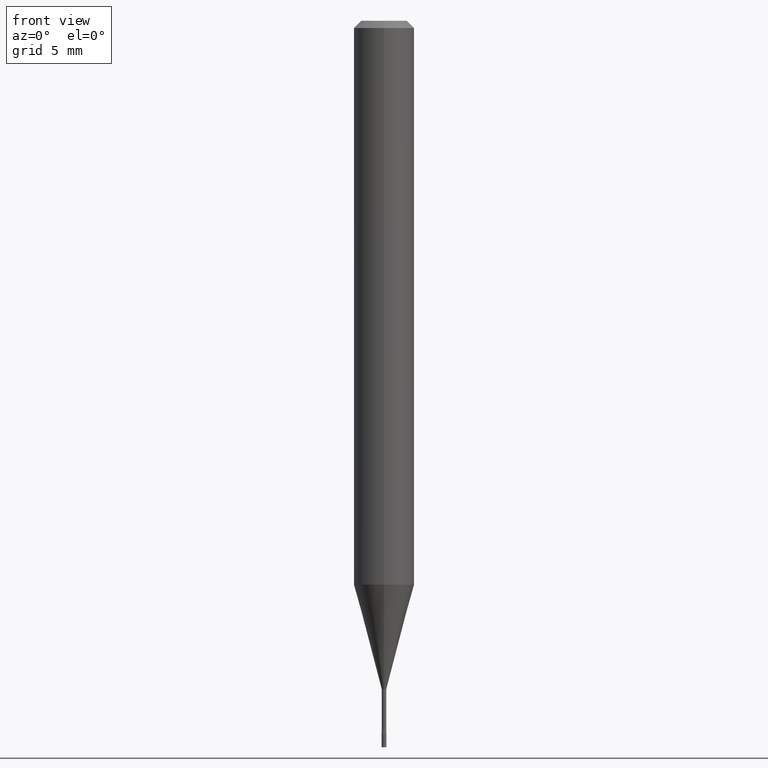
[diagram: clean part render]
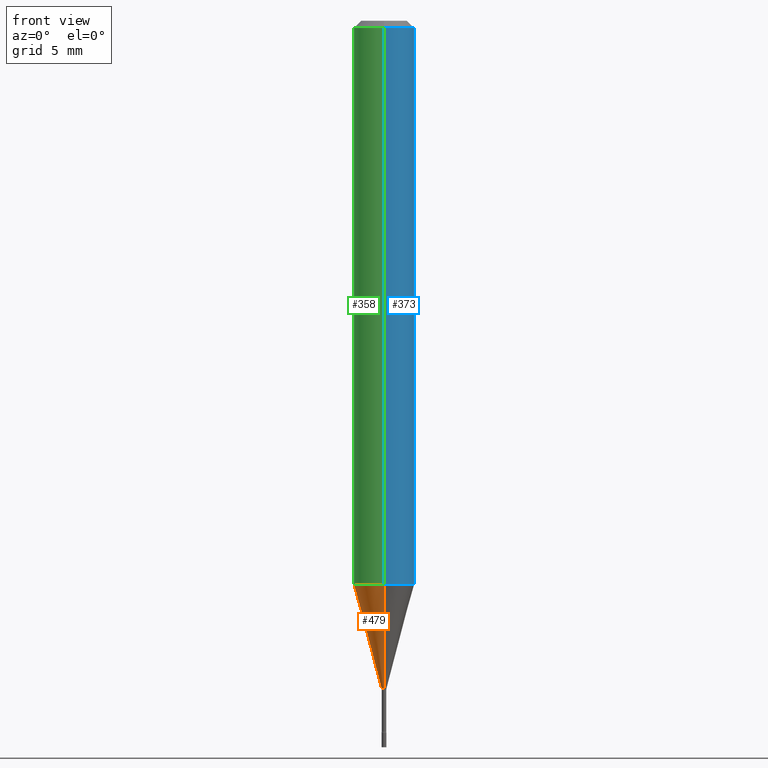
[diagram: same view with three faces highlighted in distinct colors, each labeled with its STEP entity id]
A machine part, front view with three faces highlighted in distinct colors.
Their STEP definitions:

[orange] entity #479 — the highlighted conical surface has half-angle 15 deg.
#1 = VECTOR ( 'NONE', #65, 39.37007874015748143 ) ;
#8 = CARTESIAN_POINT ( 'NONE',  ( -3.638900483453789669E-17, -0.005211112605668734299, -1.378092501787273605 ) ) ;
#22 = DIRECTION ( 'NONE',  ( -6.982962677686265922E-15, -1.000000000000000000, 4.370956789862821150E-15 ) ) ;
#43 = AXIS2_PLACEMENT_3D ( 'NONE', #74, #219, #22 ) ;
#47 = DIRECTION ( 'NONE',  ( -1.807323732225325801E-15, -0.2588190451025175753, 0.9659258262890690894 ) ) ;
#54 = DIRECTION ( 'NONE',  ( -6.982962677686266711E-15, -1.000000000000000000, 0.000000000000000000 ) ) ;
#55 = EDGE_CURVE ( 'NONE', #324, #137, #284, .T. ) ;
#56 = LINE ( 'NONE', #8, #127 ) ;
#65 = DIRECTION ( 'NONE',  ( 1.839019923739595977E-15, 0.2588190451025243477, 0.9659258262890673130 ) ) ;
#73 = EDGE_LOOP ( 'NONE', ( #450, #268, #245, #310 ) ) ;
#74 = CARTESIAN_POINT ( 'NONE',  ( 2.844915954601450546E-29, -4.068399895600381940E-15, -1.164287463322519312 ) ) ;
#109 = DIRECTION ( 'NONE',  ( -6.982962677686266711E-15, -1.000000000000000000, 0.000000000000000000 ) ) ;
#127 = VECTOR ( 'NONE', #47, 39.37007874015748854 ) ;
#137 = VERTEX_POINT ( 'NONE', #257 ) ;
#144 = CIRCLE ( 'NONE', #292, 0.005211112605663917839 ) ;
#148 = VERTEX_POINT ( 'NONE', #234 ) ;
#159 = DIRECTION ( 'NONE',  ( -2.443482425279177286E-29, 3.494325949358259350E-15, 1.000000000000000000 ) ) ;
#176 = EDGE_CURVE ( 'NONE', #202, #148, #144, .T. ) ;
#180 = CARTESIAN_POINT ( 'NONE',  ( 3.702718207185751166E-17, 0.005211112605659102247, -1.378092501787273605 ) ) ;
#185 = LINE ( 'NONE', #180, #1 ) ;
#202 = VERTEX_POINT ( 'NONE', #391 ) ;
#219 = DIRECTION ( 'NONE',  ( -2.443482425279177286E-29, 3.494325949358259350E-15, 1.000000000000000000 ) ) ;
#234 = CARTESIAN_POINT ( 'NONE',  ( -3.638900483453789669E-17, -0.005211112605668734299, -1.378092501787273605 ) ) ;
#240 = EDGE_CURVE ( 'NONE', #148, #137, #56, .T. ) ;
#245 = ORIENTED_EDGE ( 'NONE', *, *, #240, .T. ) ;
#257 = CARTESIAN_POINT ( 'NONE',  ( -4.364351673553632704E-16, -0.06250000000000409395, -1.164287463322519089 ) ) ;
#258 = EDGE_CURVE ( 'NONE', #202, #324, #185, .T. ) ;
#268 = ORIENTED_EDGE ( 'NONE', *, *, #176, .T. ) ;
#269 = CARTESIAN_POINT ( 'NONE',  ( 4.440892098500909166E-16, 0.06249999999999592687, -1.164287463322519756 ) ) ;
#284 = CIRCLE ( 'NONE', #43, 0.06250000000000000000 ) ;
#292 = AXIS2_PLACEMENT_3D ( 'NONE', #379, #459, #54 ) ;
#310 = ORIENTED_EDGE ( 'NONE', *, *, #55, .F. ) ;
#324 = VERTEX_POINT ( 'NONE', #269 ) ;
#379 = CARTESIAN_POINT ( 'NONE',  ( 3.367344808526216247E-29, -4.815504389611313492E-15, -1.378092501787273605 ) ) ;
#391 = CARTESIAN_POINT ( 'NONE',  ( 2.405581959609744668E-16, 0.005211112605659102247, -1.378092501787273605 ) ) ;
#419 = CONICAL_SURFACE ( 'NONE', #483, 0.005211112605663917839, 0.2617993877991496299 ) ;
#450 = ORIENTED_EDGE ( 'NONE', *, *, #258, .F. ) ;
#459 = DIRECTION ( 'NONE',  ( -2.443482425279177286E-29, 3.494325949358259350E-15, 1.000000000000000000 ) ) ;
#478 = CARTESIAN_POINT ( 'NONE',  ( 3.367344808526216247E-29, -4.815504389611313492E-15, -1.378092501787273605 ) ) ;
#479 = ADVANCED_FACE ( 'NONE', ( #517 ), #419, .T. ) ;
#483 = AXIS2_PLACEMENT_3D ( 'NONE', #478, #159, #109 ) ;
#517 = FACE_OUTER_BOUND ( 'NONE', #73, .T. ) ;

[blue] entity #373 — the highlighted cylindrical surface (edge-blend (fillet) strip) has radius 1.5875 mm, axis along (-0, 0, 1).
#7 = ORIENTED_EDGE ( 'NONE', *, *, #357, .T. ) ;
#15 = DIRECTION ( 'NONE',  ( -6.982962677686265922E-15, -1.000000000000000000, 3.494325949358259350E-15 ) ) ;
#21 = CARTESIAN_POINT ( 'NONE',  ( 2.844915954601450546E-29, -4.068399895600381940E-15, -1.164287463322519312 ) ) ;
#31 = VERTEX_POINT ( 'NONE', #162 ) ;
#37 = ORIENTED_EDGE ( 'NONE', *, *, #281, .F. ) ;
#99 = VECTOR ( 'NONE', #314, 39.37007874015748143 ) ;
#102 = CYLINDRICAL_SURFACE ( 'NONE', #325, 0.06250000000000000000 ) ;
#117 = VECTOR ( 'NONE', #462, 39.37007874015748143 ) ;
#118 = CARTESIAN_POINT ( 'NONE',  ( 4.440892098500912124E-16, 0.06249999999999995143, -0.01500000000000024751 ) ) ;
#137 = VERTEX_POINT ( 'NONE', #257 ) ;
#143 = DIRECTION ( 'NONE',  ( -6.982962677686265922E-15, -1.000000000000000000, 4.370956789862821150E-15 ) ) ;
#157 = LINE ( 'NONE', #360, #99 ) ;
#162 = CARTESIAN_POINT ( 'NONE',  ( -4.364351673553912750E-16, -0.06250000000000005551, -0.01499999999999981209 ) ) ;
#193 = AXIS2_PLACEMENT_3D ( 'NONE', #471, #263, #463 ) ;
#250 = ORIENTED_EDGE ( 'NONE', *, *, #322, .T. ) ;
#257 = CARTESIAN_POINT ( 'NONE',  ( -4.364351673553632704E-16, -0.06250000000000409395, -1.164287463322519089 ) ) ;
#260 = DIRECTION ( 'NONE',  ( -2.443482425279177286E-29, 3.494325949358259350E-15, 1.000000000000000000 ) ) ;
#263 = DIRECTION ( 'NONE',  ( -2.443482425279177286E-29, 3.494325949358259350E-15, 1.000000000000000000 ) ) ;
#269 = CARTESIAN_POINT ( 'NONE',  ( 4.440892098500909166E-16, 0.06249999999999592687, -1.164287463322519756 ) ) ;
#281 = EDGE_CURVE ( 'NONE', #31, #399, #413, .T. ) ;
#296 = ORIENTED_EDGE ( 'NONE', *, *, #464, .F. ) ;
#299 = CIRCLE ( 'NONE', #375, 0.06250000000000000000 ) ;
#314 = DIRECTION ( 'NONE',  ( -2.443482425279177286E-29, 3.494325949358259350E-15, 1.000000000000000000 ) ) ;
#322 = EDGE_CURVE ( 'NONE', #137, #324, #299, .T. ) ;
#324 = VERTEX_POINT ( 'NONE', #269 ) ;
#325 = AXIS2_PLACEMENT_3D ( 'NONE', #383, #260, #15 ) ;
#357 = EDGE_CURVE ( 'NONE', #324, #399, #466, .T. ) ;
#360 = CARTESIAN_POINT ( 'NONE',  ( -4.364351673553916201E-16, -0.06250000000000000000, 2.183953718348912094E-16 ) ) ;
#373 = ADVANCED_FACE ( 'NONE', ( #424 ), #102, .T. ) ;
#375 = AXIS2_PLACEMENT_3D ( 'NONE', #21, #396, #143 ) ;
#383 = CARTESIAN_POINT ( 'NONE',  ( 0.000000000000000000, 0.000000000000000000, 0.000000000000000000 ) ) ;
#396 = DIRECTION ( 'NONE',  ( -2.443482425279177286E-29, 3.494325949358259350E-15, 1.000000000000000000 ) ) ;
#399 = VERTEX_POINT ( 'NONE', #118 ) ;
#413 = CIRCLE ( 'NONE', #193, 0.06250000000000000000 ) ;
#422 = EDGE_LOOP ( 'NONE', ( #250, #7, #37, #296 ) ) ;
#424 = FACE_OUTER_BOUND ( 'NONE', #422, .T. ) ;
#462 = DIRECTION ( 'NONE',  ( -2.443482425279177286E-29, 3.494325949358259350E-15, 1.000000000000000000 ) ) ;
#463 = DIRECTION ( 'NONE',  ( -6.982962677686265922E-15, -1.000000000000000000, 3.483106191921935554E-15 ) ) ;
#464 = EDGE_CURVE ( 'NONE', #137, #31, #157, .T. ) ;
#466 = LINE ( 'NONE', #509, #117 ) ;
#471 = CARTESIAN_POINT ( 'NONE',  ( 3.665223637918772884E-31, -5.241488924037400118E-17, -0.01500000000000003067 ) ) ;
#509 = CARTESIAN_POINT ( 'NONE',  ( 4.440892098500625669E-16, 0.06250000000000000000, -2.183953718348912094E-16 ) ) ;

[green] entity #358 — the highlighted cylindrical surface (edge-blend (fillet) strip) has radius 1.5875 mm, axis along (-0, 0, 1).
#22 = DIRECTION ( 'NONE',  ( -6.982962677686265922E-15, -1.000000000000000000, 4.370956789862821150E-15 ) ) ;
#28 = CARTESIAN_POINT ( 'NONE',  ( 0.000000000000000000, 0.000000000000000000, 0.000000000000000000 ) ) ;
#31 = VERTEX_POINT ( 'NONE', #162 ) ;
#43 = AXIS2_PLACEMENT_3D ( 'NONE', #74, #219, #22 ) ;
#55 = EDGE_CURVE ( 'NONE', #324, #137, #284, .T. ) ;
#58 = ORIENTED_EDGE ( 'NONE', *, *, #357, .F. ) ;
#63 = DIRECTION ( 'NONE',  ( -2.443482425279177286E-29, 3.494325949358259350E-15, 1.000000000000000000 ) ) ;
#74 = CARTESIAN_POINT ( 'NONE',  ( 2.844915954601450546E-29, -4.068399895600381940E-15, -1.164287463322519312 ) ) ;
#94 = EDGE_CURVE ( 'NONE', #399, #31, #97, .T. ) ;
#97 = CIRCLE ( 'NONE', #334, 0.06250000000000000000 ) ;
#99 = VECTOR ( 'NONE', #314, 39.37007874015748143 ) ;
#117 = VECTOR ( 'NONE', #462, 39.37007874015748143 ) ;
#118 = CARTESIAN_POINT ( 'NONE',  ( 4.440892098500912124E-16, 0.06249999999999995143, -0.01500000000000024751 ) ) ;
#137 = VERTEX_POINT ( 'NONE', #257 ) ;
#149 = FACE_OUTER_BOUND ( 'NONE', #289, .T. ) ;
#157 = LINE ( 'NONE', #360, #99 ) ;
#162 = CARTESIAN_POINT ( 'NONE',  ( -4.364351673553912750E-16, -0.06250000000000005551, -0.01499999999999981209 ) ) ;
#172 = ORIENTED_EDGE ( 'NONE', *, *, #55, .T. ) ;
#182 = DIRECTION ( 'NONE',  ( -2.443482425279177286E-29, 3.494325949358259350E-15, 1.000000000000000000 ) ) ;
#188 = AXIS2_PLACEMENT_3D ( 'NONE', #28, #182, #190 ) ;
#190 = DIRECTION ( 'NONE',  ( -6.982962677686265922E-15, -1.000000000000000000, 3.494325949358259350E-15 ) ) ;
#219 = DIRECTION ( 'NONE',  ( -2.443482425279177286E-29, 3.494325949358259350E-15, 1.000000000000000000 ) ) ;
#223 = DIRECTION ( 'NONE',  ( -6.982962677686265922E-15, -1.000000000000000000, 3.483106191921935554E-15 ) ) ;
#257 = CARTESIAN_POINT ( 'NONE',  ( -4.364351673553632704E-16, -0.06250000000000409395, -1.164287463322519089 ) ) ;
#269 = CARTESIAN_POINT ( 'NONE',  ( 4.440892098500909166E-16, 0.06249999999999592687, -1.164287463322519756 ) ) ;
#284 = CIRCLE ( 'NONE', #43, 0.06250000000000000000 ) ;
#289 = EDGE_LOOP ( 'NONE', ( #58, #172, #365, #388 ) ) ;
#312 = CYLINDRICAL_SURFACE ( 'NONE', #188, 0.06250000000000000000 ) ;
#314 = DIRECTION ( 'NONE',  ( -2.443482425279177286E-29, 3.494325949358259350E-15, 1.000000000000000000 ) ) ;
#324 = VERTEX_POINT ( 'NONE', #269 ) ;
#334 = AXIS2_PLACEMENT_3D ( 'NONE', #426, #63, #223 ) ;
#357 = EDGE_CURVE ( 'NONE', #324, #399, #466, .T. ) ;
#358 = ADVANCED_FACE ( 'NONE', ( #149 ), #312, .T. ) ;
#360 = CARTESIAN_POINT ( 'NONE',  ( -4.364351673553916201E-16, -0.06250000000000000000, 2.183953718348912094E-16 ) ) ;
#365 = ORIENTED_EDGE ( 'NONE', *, *, #464, .T. ) ;
#388 = ORIENTED_EDGE ( 'NONE', *, *, #94, .F. ) ;
#399 = VERTEX_POINT ( 'NONE', #118 ) ;
#426 = CARTESIAN_POINT ( 'NONE',  ( 3.665223637918772884E-31, -5.241488924037400118E-17, -0.01500000000000003067 ) ) ;
#462 = DIRECTION ( 'NONE',  ( -2.443482425279177286E-29, 3.494325949358259350E-15, 1.000000000000000000 ) ) ;
#464 = EDGE_CURVE ( 'NONE', #137, #31, #157, .T. ) ;
#466 = LINE ( 'NONE', #509, #117 ) ;
#509 = CARTESIAN_POINT ( 'NONE',  ( 4.440892098500625669E-16, 0.06250000000000000000, -2.183953718348912094E-16 ) ) ;